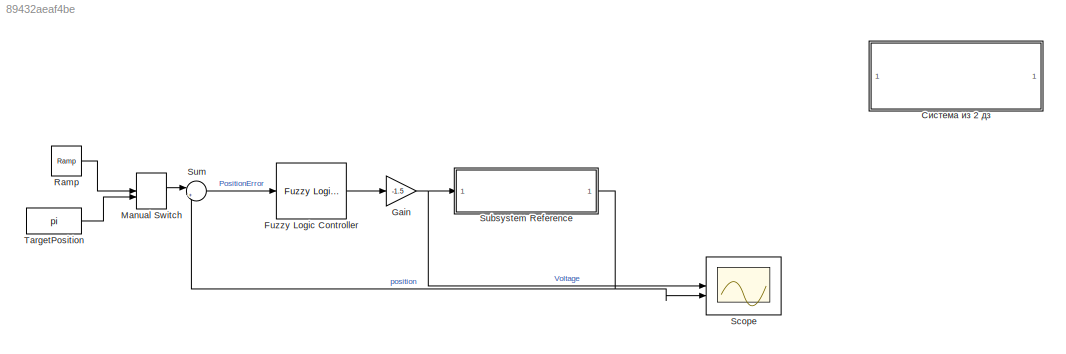
MODEL slx_89432aeaf4be
KIND model
CONFIG AbsTol = 1e-2
CONFIG EnableMultiTasking = on
CONFIG FixedStep = auto
CONFIG MaxStep = 0.1
CONFIG MinStep = auto
CONFIG RelTol = 1e-2
CONFIG SampleTimeConstraint = Unconstrained
CONFIG SolverName = VariableStepAuto
CONFIG StartTime = 0.0
CONFIG StopTime = 50
BLOCK [Reference] Fuzzy Logic Controller  REF=fuzblock/Fuzzy Logic   (lib defined in mdl_858b3b3e7478)
Controller
  SourceBlock = fuzblock/Fuzzy Logic \nController
  SourceType = Fuzzy Inference System
BLOCK [Gain] Gain
  Gain = -1.5
BLOCK [ManualSwitch] Manual Switch
BLOCK [Reference] Ramp  REF=simulink/Sources/Ramp
  SourceBlock = simulink/Sources/Ramp
  SourceType = Ramp
BLOCK [Scope] Scope
  Floating = off
  NumInputPorts = 2
  ScopeSpecificationString = Simulink.scopes.TimeScopeBlockCfg('CurrentConfiguration', extmgr.ConfigurationSet(extmgr.Configuration('Core','General UI',true,'FigureColor',[1 1 1]),extmgr.Configuration('Core','Source UI',true),extmgr.Configuration('Sources','WiredSimulink',true),extmgr.Configuration('Visuals','Time Domain',true,'SerializedDisplays',{struct('MinYLimReal','-20.76923','MaxYLimReal','20.76923','YLabelReal','','Min...<+2227ch>
BLOCK [SubSystem] Subsystem Reference
  ReferencedSubsystem = dz1_model
BLOCK [Sum] Sum
  Inputs = |+-
BLOCK [Constant] TargetPosition
  Value = pi
BLOCK [SubSystem] Система из 2 дз
  Commented = on
  ReferencedSubsystem = testSubject
LINE Fuzzy Logic Controller:1 -> Gain:1
NET Gain:1 -> Scope:1, Subsystem Reference:1
LINE Manual Switch:1 -> Sum:1
LINE Ramp:1 -> Manual Switch:1
NET Subsystem Reference:1 -> Scope:2, Sum:2
LINE Sum:1 -> Fuzzy Logic Controller:1
LINE TargetPosition:1 -> Manual Switch:2
note: NET lines group one-source signal fan-out (src -> all destinations, sorted); 1:1 wires keep LINE
